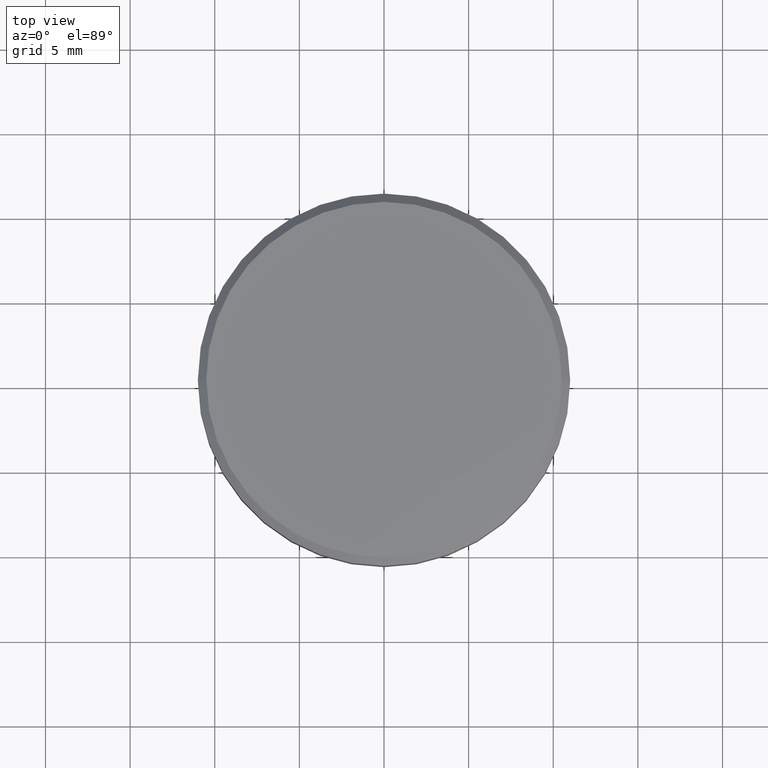
[diagram: clean part render]
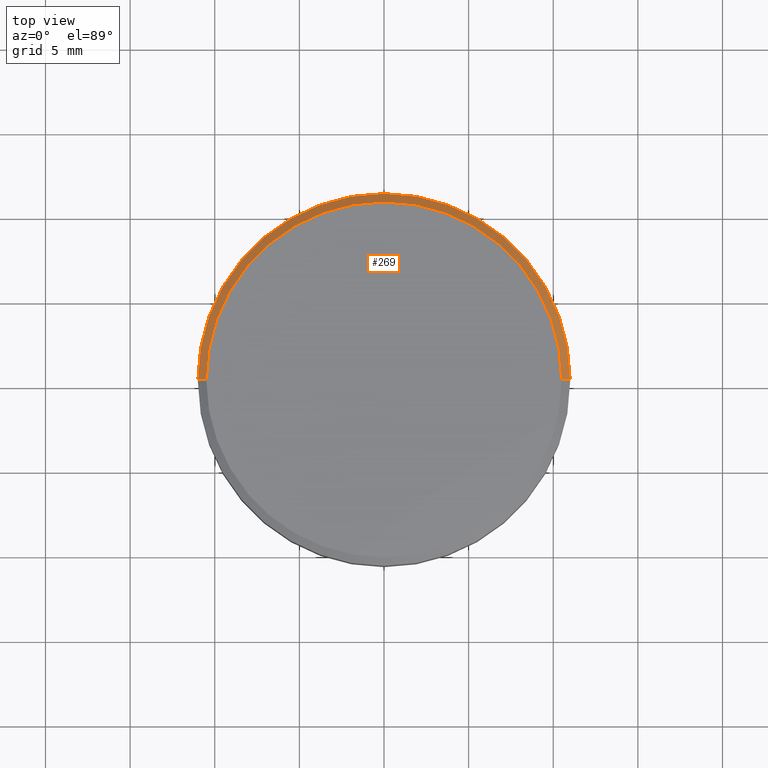
[diagram: same view with one face highlighted and labeled with its STEP entity id]
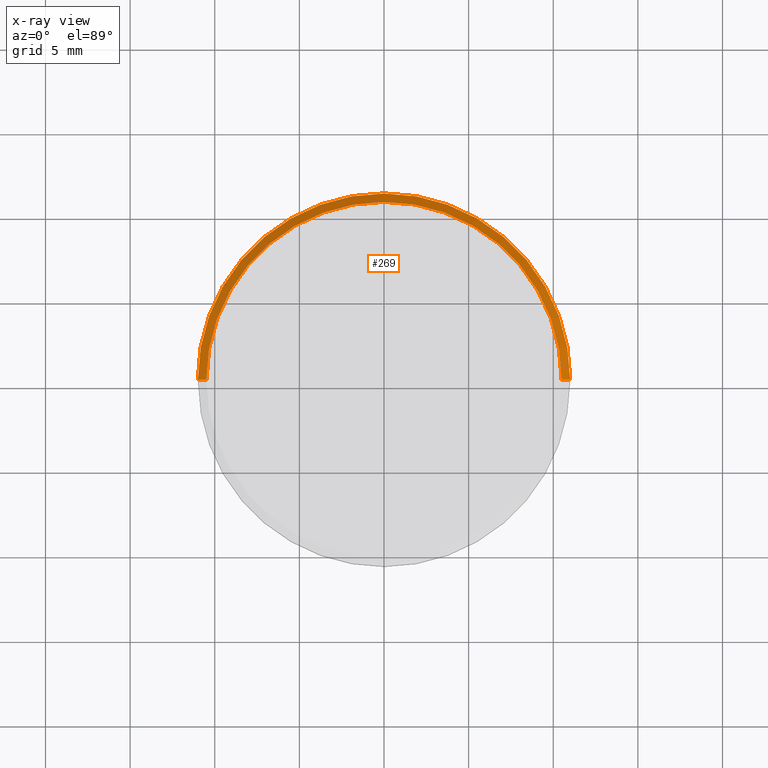
[diagram: x-ray of the same camera — body ghosted, the highlighted face saturated]
A machine part, top view. The second image highlights one B-rep face of the part: STEP entity #269.
The next image is the same camera in x-ray: the body ghosted, the highlighted face saturated — about 0% of this face is hidden behind the body in this view.
In plain terms, the highlighted conical surface has half-angle 45 deg.
Its self-contained STEP definition (entity closure, byte-faithful):
#2 = CARTESIAN_POINT ( 'NONE',  ( 0.000000000000000000, 0.000000000000000000, 0.000000000000000000 ) ) ;
#3 = CIRCLE ( 'NONE', #142, 10.49999999999999822 ) ;
#6 = CARTESIAN_POINT ( 'NONE',  ( 11.00000000000000000, 0.000000000000000000, -0.5000000000000004441 ) ) ;
#12 = VERTEX_POINT ( 'NONE', #49 ) ;
#21 = CARTESIAN_POINT ( 'NONE',  ( -10.49999999999999822, 0.000000000000000000, 0.000000000000000000 ) ) ;
#32 = EDGE_CURVE ( 'NONE', #12, #193, #369, .T. ) ;
#49 = CARTESIAN_POINT ( 'NONE',  ( -11.00000000000000000, 1.347111479062088405E-15, -0.5000000000000004441 ) ) ;
#51 = DIRECTION ( 'NONE',  ( -0.7071067811865474617, 0.000000000000000000, -0.7071067811865474617 ) ) ;
#52 = DIRECTION ( 'NONE',  ( 1.000000000000000000, 0.000000000000000000, 0.000000000000000000 ) ) ;
#53 = DIRECTION ( 'NONE',  ( -1.000000000000000000, 0.000000000000000000, 0.000000000000000000 ) ) ;
#82 = DIRECTION ( 'NONE',  ( 0.7071067811865474617, 8.659560562354932858E-17, -0.7071067811865474617 ) ) ;
#84 = DIRECTION ( 'NONE',  ( 0.000000000000000000, 0.000000000000000000, -1.000000000000000000 ) ) ;
#86 = VERTEX_POINT ( 'NONE', #346 ) ;
#88 = EDGE_LOOP ( 'NONE', ( #351, #320, #319, #343 ) ) ;
#89 = DIRECTION ( 'NONE',  ( 0.000000000000000000, 0.000000000000000000, -1.000000000000000000 ) ) ;
#123 = VECTOR ( 'NONE', #82, 1000.000000000000114 ) ;
#142 = AXIS2_PLACEMENT_3D ( 'NONE', #2, #243, #279 ) ;
#159 = EDGE_CURVE ( 'NONE', #266, #86, #3, .T. ) ;
#193 = VERTEX_POINT ( 'NONE', #6 ) ;
#198 = CARTESIAN_POINT ( 'NONE',  ( 10.49999999999999822, 1.285879139104720633E-15, 0.000000000000000000 ) ) ;
#213 = AXIS2_PLACEMENT_3D ( 'NONE', #234, #89, #53 ) ;
#224 = CARTESIAN_POINT ( 'NONE',  ( 10.49999999999999822, 1.316495309083404420E-15, 0.000000000000000000 ) ) ;
#234 = CARTESIAN_POINT ( 'NONE',  ( 0.000000000000000000, 0.000000000000000000, 0.000000000000000000 ) ) ;
#243 = DIRECTION ( 'NONE',  ( -0.000000000000000000, -0.000000000000000000, 1.000000000000000000 ) ) ;
#246 = CARTESIAN_POINT ( 'NONE',  ( 0.000000000000000000, 0.000000000000000000, -0.5000000000000004441 ) ) ;
#266 = VERTEX_POINT ( 'NONE', #224 ) ;
#269 = ADVANCED_FACE ( 'NONE', ( #300 ), #313, .T. ) ;
#273 = AXIS2_PLACEMENT_3D ( 'NONE', #246, #84, #52 ) ;
#279 = DIRECTION ( 'NONE',  ( 1.000000000000000000, 0.000000000000000000, 0.000000000000000000 ) ) ;
#300 = FACE_OUTER_BOUND ( 'NONE', #88, .T. ) ;
#307 = EDGE_CURVE ( 'NONE', #86, #12, #385, .T. ) ;
#308 = EDGE_CURVE ( 'NONE', #266, #193, #353, .T. ) ;
#313 = CONICAL_SURFACE ( 'NONE', #213, 10.49999999999999822, 0.7853981633974482790 ) ;
#319 = ORIENTED_EDGE ( 'NONE', *, *, #32, .F. ) ;
#320 = ORIENTED_EDGE ( 'NONE', *, *, #308, .T. ) ;
#343 = ORIENTED_EDGE ( 'NONE', *, *, #307, .F. ) ;
#346 = CARTESIAN_POINT ( 'NONE',  ( -10.49999999999999822, 0.000000000000000000, 0.000000000000000000 ) ) ;
#351 = ORIENTED_EDGE ( 'NONE', *, *, #159, .F. ) ;
#353 = LINE ( 'NONE', #198, #123 ) ;
#369 = CIRCLE ( 'NONE', #273, 11.00000000000000000 ) ;
#371 = VECTOR ( 'NONE', #51, 1000.000000000000114 ) ;
#385 = LINE ( 'NONE', #21, #371 ) ;